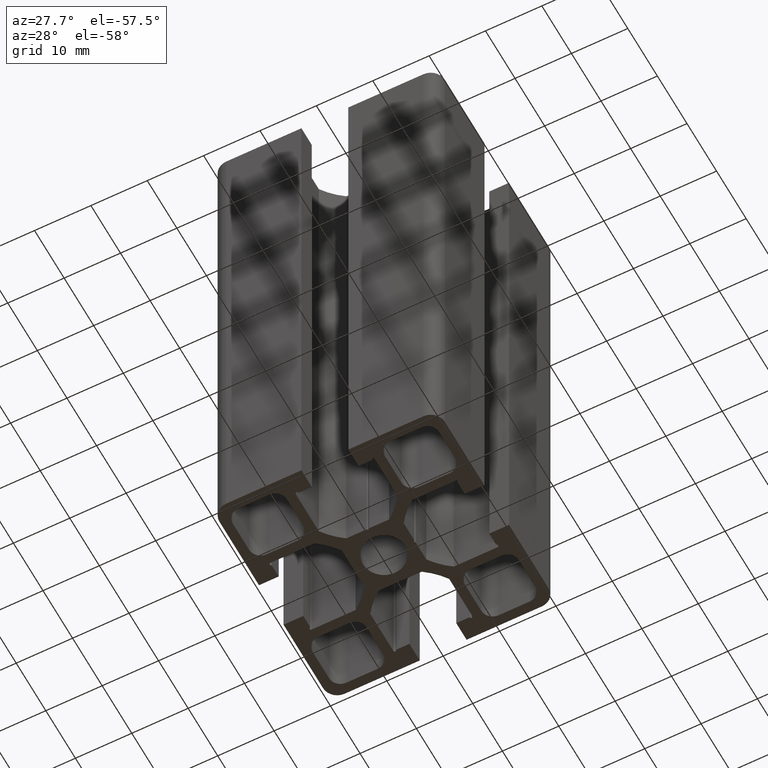
[diagram: clean part render]
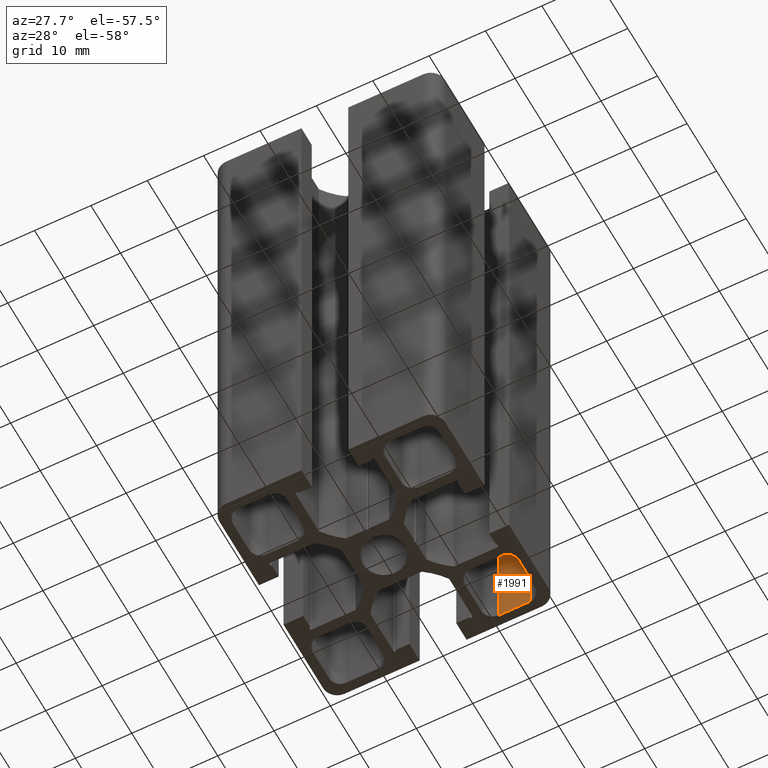
[diagram: same view with one face highlighted and labeled with its STEP entity id]
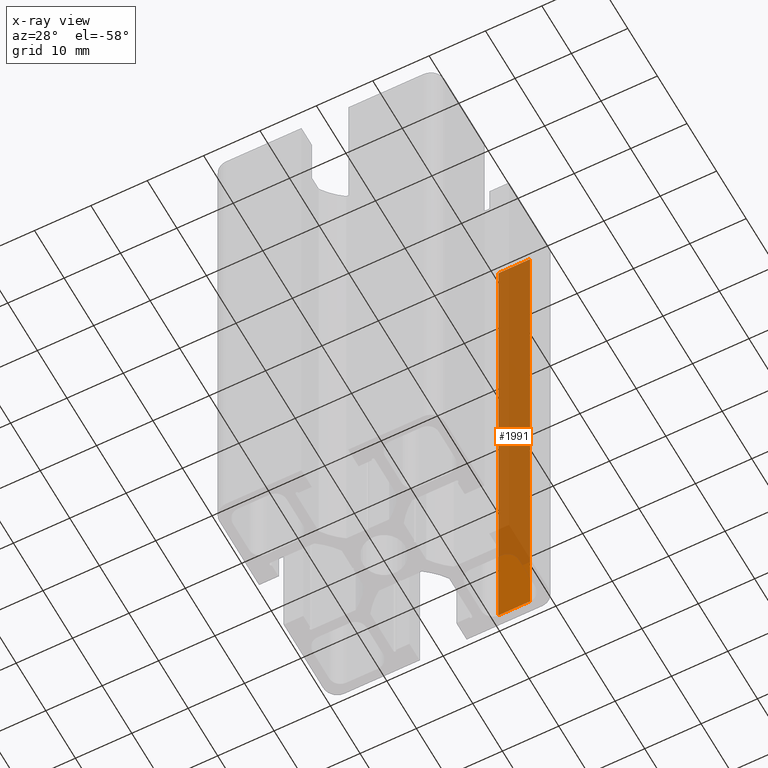
[diagram: x-ray of the same camera — body ghosted, the highlighted face saturated]
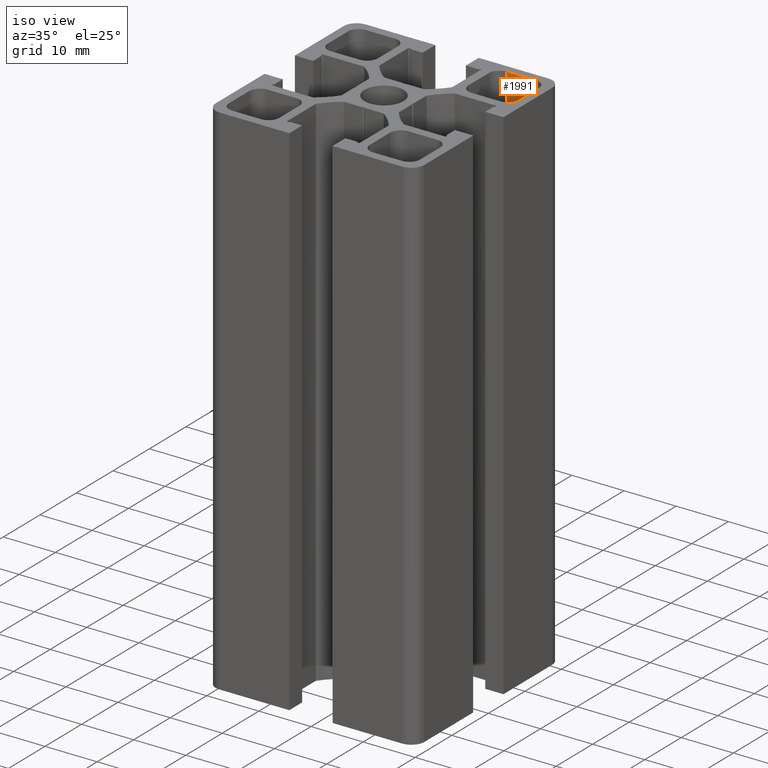
[diagram: same view with one face highlighted and labeled with its STEP entity id]
A machine part, auxiliary view. The second image highlights one B-rep face of the part: STEP entity #1991.
The next image is the same camera in x-ray: the body ghosted, the highlighted face saturated — about 85% of this face is hidden behind the body in this view.
A second angle (iso view) of the same face is appended — the face is thin or edge-on in the first view.
In plain terms, the highlighted planar face has unit normal (0, 1, 0).
Its self-contained STEP definition (entity closure, byte-faithful):
#29=PLANE('',#2104);
#99=FACE_OUTER_BOUND('',#202,.T.);
#202=EDGE_LOOP('',(#1371,#1372,#1373,#1374));
#310=LINE('',#2859,#538);
#322=LINE('',#2894,#550);
#323=LINE('',#2897,#551);
#324=LINE('',#2898,#552);
#538=VECTOR('',#2275,100.);
#550=VECTOR('',#2309,100.);
#551=VECTOR('',#2314,5.60000000000012);
#552=VECTOR('',#2315,5.60000000000012);
#840=VERTEX_POINT('',#2853);
#842=VERTEX_POINT('',#2857);
#853=VERTEX_POINT('',#2891);
#854=VERTEX_POINT('',#2893);
#1044=EDGE_CURVE('',#840,#842,#310,.T.);
#1061=EDGE_CURVE('',#853,#854,#322,.T.);
#1063=EDGE_CURVE('',#840,#853,#323,.T.);
#1064=EDGE_CURVE('',#854,#842,#324,.T.);
#1371=ORIENTED_EDGE('',*,*,#1063,.F.);
#1372=ORIENTED_EDGE('',*,*,#1044,.T.);
#1373=ORIENTED_EDGE('',*,*,#1064,.F.);
#1374=ORIENTED_EDGE('',*,*,#1061,.F.);
#1991=ADVANCED_FACE('',(#99),#29,.F.);
#2104=AXIS2_PLACEMENT_3D('',#2896,#2312,#2313);
#2275=DIRECTION('',(0.,0.,1.));
#2309=DIRECTION('',(0.,0.,1.));
#2312=DIRECTION('center_axis',(0.,1.,0.));
#2313=DIRECTION('ref_axis',(-1.,0.,0.));
#2314=DIRECTION('',(-1.,0.,0.));
#2315=DIRECTION('',(1.,0.,0.));
#2853=CARTESIAN_POINT('',(16.2999999999999,18.3000000000001,0.));
#2857=CARTESIAN_POINT('',(16.2999999999999,18.3000000000001,100.));
#2859=CARTESIAN_POINT('',(16.2999999999999,18.3000000000001,0.));
#2891=CARTESIAN_POINT('',(10.6999999999998,18.3000000000001,0.));
#2893=CARTESIAN_POINT('',(10.6999999999998,18.3000000000001,100.));
#2894=CARTESIAN_POINT('',(10.6999999999998,18.3000000000001,0.));
#2896=CARTESIAN_POINT('Origin',(16.2999999999999,18.3000000000001,0.));
#2897=CARTESIAN_POINT('',(8.1499999999999,18.3000000000001,0.));
#2898=CARTESIAN_POINT('',(8.1499999999999,18.3000000000001,100.));